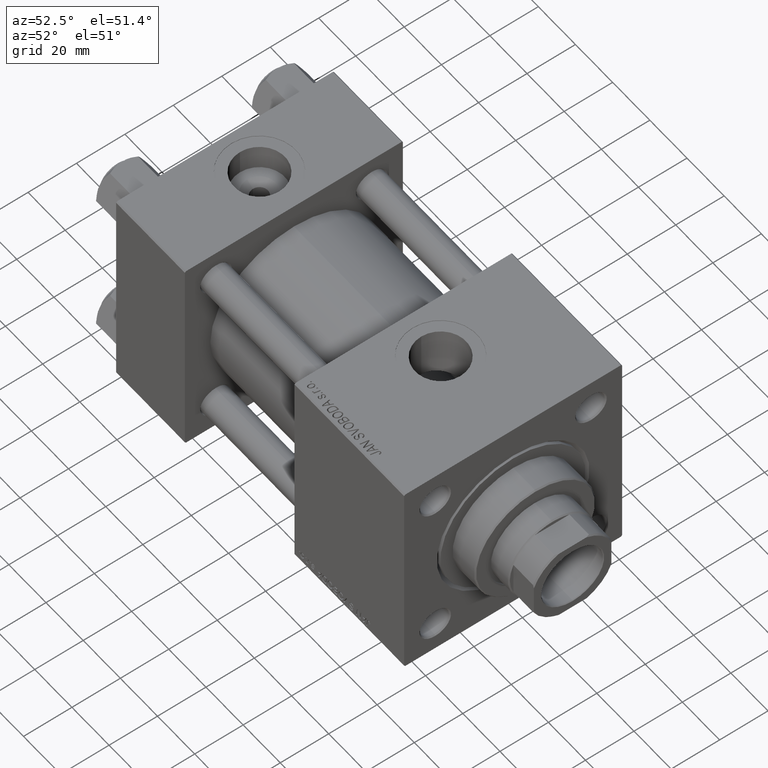
[diagram: clean part render]
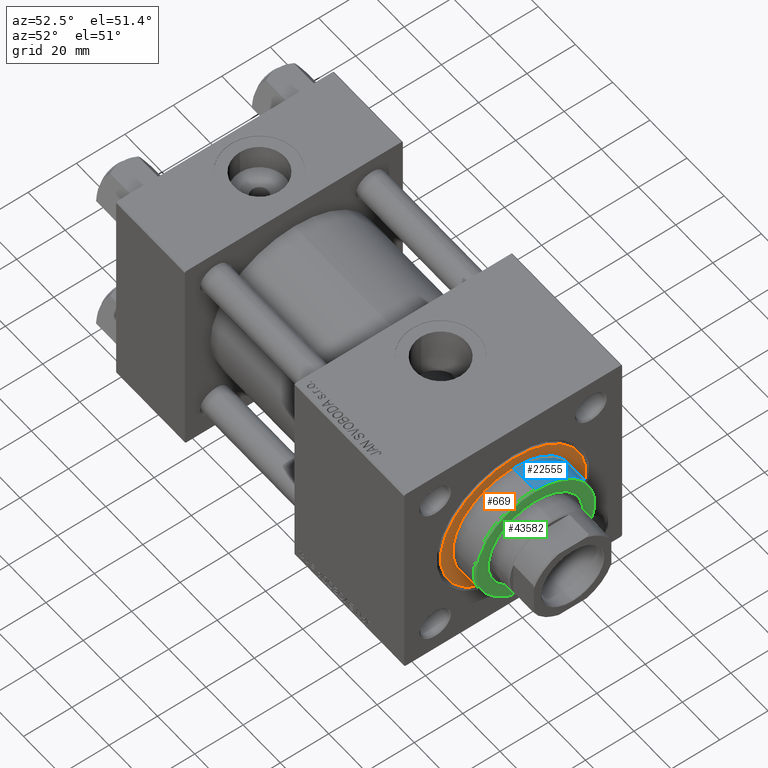
[diagram: same view with three faces highlighted in distinct colors, each labeled with its STEP entity id]
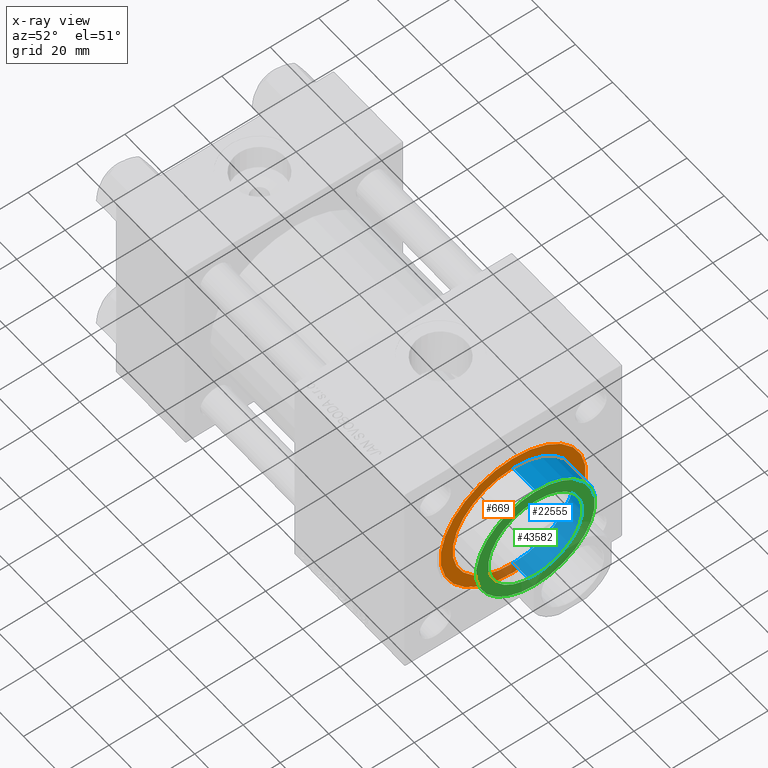
[diagram: x-ray of the same camera — body ghosted, the three highlighted faces saturated]
A machine part, auxiliary view with three faces highlighted in distinct colors.
The next image is the same camera in x-ray (body ghosted, the three faces saturated) — at least one of them is partly hidden behind the body in this view.
Their STEP definitions:

[orange] entity #669 — the highlighted planar face has unit normal (1, 0, 0).
#669 = ADVANCED_FACE ( 'NONE', ( #26575, #7536 ), #46382, .T. ) ;
#3046 = EDGE_LOOP ( 'NONE', ( #22039, #48666 ) ) ;
#3228 = DIRECTION ( 'NONE',  ( 0.000000000000000000, 0.000000000000000000, 1.000000000000000000 ) ) ;
#3312 = CIRCLE ( 'NONE', #28428, 30.00000000000000000 ) ;
#3355 = VERTEX_POINT ( 'NONE', #24071 ) ;
#4028 = AXIS2_PLACEMENT_3D ( 'NONE', #34830, #42928, #46731 ) ;
#7321 = EDGE_CURVE ( 'NONE', #3355, #35221, #20764, .T. ) ;
#7536 = FACE_OUTER_BOUND ( 'NONE', #10777, .T. ) ;
#10777 = EDGE_LOOP ( 'NONE', ( #39465, #35283 ) ) ;
#12841 = CARTESIAN_POINT ( 'NONE',  ( 0.000000000000000000, 0.000000000000000000, 28.69999999999999929 ) ) ;
#13475 = CARTESIAN_POINT ( 'NONE',  ( 30.00000000000000000, 3.673940397442059178E-15, 28.69999999999999929 ) ) ;
#14511 = CARTESIAN_POINT ( 'NONE',  ( -30.00000000000000000, 0.000000000000000000, 28.69999999999999929 ) ) ;
#15411 = DIRECTION ( 'NONE',  ( 0.000000000000000000, 0.000000000000000000, 1.000000000000000000 ) ) ;
#18715 = DIRECTION ( 'NONE',  ( 1.000000000000000000, 0.000000000000000000, -0.000000000000000000 ) ) ;
#20462 = DIRECTION ( 'NONE',  ( 0.000000000000000000, 0.000000000000000000, 1.000000000000000000 ) ) ;
#20764 = CIRCLE ( 'NONE', #34550, 25.00000000000000000 ) ;
#22039 = ORIENTED_EDGE ( 'NONE', *, *, #46918, .F. ) ;
#22428 = AXIS2_PLACEMENT_3D ( 'NONE', #23514, #3228, #18715 ) ;
#23514 = CARTESIAN_POINT ( 'NONE',  ( 0.000000000000000000, 0.000000000000000000, 28.69999999999999929 ) ) ;
#23715 = CARTESIAN_POINT ( 'NONE',  ( -25.00000000000000000, 0.000000000000000000, 28.69999999999999929 ) ) ;
#24071 = CARTESIAN_POINT ( 'NONE',  ( 25.00000000000000000, 3.061616997868383043E-15, 28.69999999999999929 ) ) ;
#24090 = VERTEX_POINT ( 'NONE', #13475 ) ;
#26575 = FACE_BOUND ( 'NONE', #3046, .T. ) ;
#26824 = DIRECTION ( 'NONE',  ( 1.000000000000000000, 0.000000000000000000, 0.000000000000000000 ) ) ;
#27920 = DIRECTION ( 'NONE',  ( 0.000000000000000000, 0.000000000000000000, 1.000000000000000000 ) ) ;
#28334 = DIRECTION ( 'NONE',  ( 1.000000000000000000, 0.000000000000000000, 0.000000000000000000 ) ) ;
#28428 = AXIS2_PLACEMENT_3D ( 'NONE', #12841, #20462, #28334 ) ;
#31498 = CIRCLE ( 'NONE', #45272, 30.00000000000000000 ) ;
#32229 = DIRECTION ( 'NONE',  ( 1.000000000000000000, 0.000000000000000000, 0.000000000000000000 ) ) ;
#34550 = AXIS2_PLACEMENT_3D ( 'NONE', #49675, #15411, #26824 ) ;
#34830 = CARTESIAN_POINT ( 'NONE',  ( 0.000000000000000000, 0.000000000000000000, 28.69999999999999929 ) ) ;
#35221 = VERTEX_POINT ( 'NONE', #23715 ) ;
#35283 = ORIENTED_EDGE ( 'NONE', *, *, #49115, .T. ) ;
#37262 = CIRCLE ( 'NONE', #4028, 25.00000000000000000 ) ;
#39465 = ORIENTED_EDGE ( 'NONE', *, *, #40213, .T. ) ;
#40213 = EDGE_CURVE ( 'NONE', #47495, #24090, #31498, .T. ) ;
#42928 = DIRECTION ( 'NONE',  ( 0.000000000000000000, 0.000000000000000000, 1.000000000000000000 ) ) ;
#43648 = CARTESIAN_POINT ( 'NONE',  ( 0.000000000000000000, 0.000000000000000000, 28.69999999999999929 ) ) ;
#45272 = AXIS2_PLACEMENT_3D ( 'NONE', #43648, #27920, #32229 ) ;
#46382 = PLANE ( 'NONE',  #22428 ) ;
#46731 = DIRECTION ( 'NONE',  ( 1.000000000000000000, 0.000000000000000000, 0.000000000000000000 ) ) ;
#46918 = EDGE_CURVE ( 'NONE', #35221, #3355, #37262, .T. ) ;
#47495 = VERTEX_POINT ( 'NONE', #14511 ) ;
#48666 = ORIENTED_EDGE ( 'NONE', *, *, #7321, .F. ) ;
#49115 = EDGE_CURVE ( 'NONE', #24090, #47495, #3312, .T. ) ;
#49675 = CARTESIAN_POINT ( 'NONE',  ( 0.000000000000000000, 0.000000000000000000, 28.69999999999999929 ) ) ;

[blue] entity #22555 — the highlighted cylindrical surface (partial cylindrical patch) has radius 25 mm, axis along (-1, -0, 0).
#1784 = CARTESIAN_POINT ( 'NONE',  ( -25.00000000000000000, 0.000000000000000000, 40.70000000000000284 ) ) ;
#3355 = VERTEX_POINT ( 'NONE', #24071 ) ;
#3542 = DIRECTION ( 'NONE',  ( -0.000000000000000000, -0.000000000000000000, -1.000000000000000000 ) ) ;
#5970 = EDGE_CURVE ( 'NONE', #8563, #3355, #39859, .T. ) ;
#7321 = EDGE_CURVE ( 'NONE', #3355, #35221, #20764, .T. ) ;
#8563 = VERTEX_POINT ( 'NONE', #45059 ) ;
#8652 = AXIS2_PLACEMENT_3D ( 'NONE', #35617, #19873, #36117 ) ;
#9193 = ORIENTED_EDGE ( 'NONE', *, *, #9838, .T. ) ;
#9838 = EDGE_CURVE ( 'NONE', #26881, #8563, #40301, .T. ) ;
#15411 = DIRECTION ( 'NONE',  ( 0.000000000000000000, 0.000000000000000000, 1.000000000000000000 ) ) ;
#15963 = FACE_OUTER_BOUND ( 'NONE', #33920, .T. ) ;
#17264 = EDGE_CURVE ( 'NONE', #26881, #35221, #36573, .T. ) ;
#17282 = DIRECTION ( 'NONE',  ( -0.000000000000000000, -0.000000000000000000, -1.000000000000000000 ) ) ;
#19873 = DIRECTION ( 'NONE',  ( 0.000000000000000000, 0.000000000000000000, -1.000000000000000000 ) ) ;
#20764 = CIRCLE ( 'NONE', #34550, 25.00000000000000000 ) ;
#21840 = ORIENTED_EDGE ( 'NONE', *, *, #17264, .F. ) ;
#22555 = ADVANCED_FACE ( 'NONE', ( #15963 ), #38320, .T. ) ;
#23715 = CARTESIAN_POINT ( 'NONE',  ( -25.00000000000000000, 0.000000000000000000, 28.69999999999999929 ) ) ;
#24071 = CARTESIAN_POINT ( 'NONE',  ( 25.00000000000000000, 3.061616997868383043E-15, 28.69999999999999929 ) ) ;
#26824 = DIRECTION ( 'NONE',  ( 1.000000000000000000, 0.000000000000000000, 0.000000000000000000 ) ) ;
#26881 = VERTEX_POINT ( 'NONE', #35497 ) ;
#33920 = EDGE_LOOP ( 'NONE', ( #9193, #49141, #38146, #21840 ) ) ;
#34550 = AXIS2_PLACEMENT_3D ( 'NONE', #49675, #15411, #26824 ) ;
#35221 = VERTEX_POINT ( 'NONE', #23715 ) ;
#35497 = CARTESIAN_POINT ( 'NONE',  ( -25.00000000000000000, 0.000000000000000000, 40.20000000000000284 ) ) ;
#35617 = CARTESIAN_POINT ( 'NONE',  ( 0.000000000000000000, 0.000000000000000000, 40.20000000000000284 ) ) ;
#36117 = DIRECTION ( 'NONE',  ( 1.000000000000000000, 0.000000000000000000, 0.000000000000000000 ) ) ;
#36573 = LINE ( 'NONE', #1784, #45262 ) ;
#38146 = ORIENTED_EDGE ( 'NONE', *, *, #7321, .T. ) ;
#38320 = CYLINDRICAL_SURFACE ( 'NONE', #44648, 25.00000000000000000 ) ;
#39103 = DIRECTION ( 'NONE',  ( -0.000000000000000000, -0.000000000000000000, -1.000000000000000000 ) ) ;
#39859 = LINE ( 'NONE', #47712, #46999 ) ;
#40301 = CIRCLE ( 'NONE', #8652, 25.00000000000000000 ) ;
#44648 = AXIS2_PLACEMENT_3D ( 'NONE', #46928, #3542, #46442 ) ;
#45059 = CARTESIAN_POINT ( 'NONE',  ( 25.00000000000000000, 3.061616997868383043E-15, 40.20000000000000284 ) ) ;
#45262 = VECTOR ( 'NONE', #17282, 1000.000000000000000 ) ;
#46442 = DIRECTION ( 'NONE',  ( -1.000000000000000000, 0.000000000000000000, 0.000000000000000000 ) ) ;
#46928 = CARTESIAN_POINT ( 'NONE',  ( 0.000000000000000000, 0.000000000000000000, 40.70000000000000284 ) ) ;
#46999 = VECTOR ( 'NONE', #39103, 1000.000000000000000 ) ;
#47712 = CARTESIAN_POINT ( 'NONE',  ( 25.00000000000000000, 3.061616997868383043E-15, 40.70000000000000284 ) ) ;
#49141 = ORIENTED_EDGE ( 'NONE', *, *, #5970, .T. ) ;
#49675 = CARTESIAN_POINT ( 'NONE',  ( 0.000000000000000000, 0.000000000000000000, 28.69999999999999929 ) ) ;

[green] entity #43582 — the highlighted planar face has unit normal (1, 0, 0).
#2253 = CARTESIAN_POINT ( 'NONE',  ( -19.50000000000000000, 2.388061258337338939E-15, 40.70000000000000284 ) ) ;
#5904 = CARTESIAN_POINT ( 'NONE',  ( 0.000000000000000000, 0.000000000000000000, 40.70000000000000284 ) ) ;
#7218 = CIRCLE ( 'NONE', #30750, 24.49999999999999645 ) ;
#10024 = EDGE_CURVE ( 'NONE', #44957, #30975, #27333, .T. ) ;
#10936 = CARTESIAN_POINT ( 'NONE',  ( 0.000000000000000000, 0.000000000000000000, 40.70000000000000284 ) ) ;
#12726 = DIRECTION ( 'NONE',  ( 1.000000000000000000, 0.000000000000000000, 0.000000000000000000 ) ) ;
#13768 = DIRECTION ( 'NONE',  ( 0.000000000000000000, 0.000000000000000000, 1.000000000000000000 ) ) ;
#14898 = VERTEX_POINT ( 'NONE', #41053 ) ;
#16255 = DIRECTION ( 'NONE',  ( 1.000000000000000000, 0.000000000000000000, -0.000000000000000000 ) ) ;
#16576 = DIRECTION ( 'NONE',  ( 1.000000000000000000, 0.000000000000000000, 0.000000000000000000 ) ) ;
#18706 = AXIS2_PLACEMENT_3D ( 'NONE', #36819, #32521, #32775 ) ;
#23135 = EDGE_CURVE ( 'NONE', #30975, #44957, #37327, .T. ) ;
#23365 = FACE_BOUND ( 'NONE', #42158, .T. ) ;
#23730 = AXIS2_PLACEMENT_3D ( 'NONE', #27471, #42953, #12726 ) ;
#26416 = DIRECTION ( 'NONE',  ( 0.000000000000000000, 0.000000000000000000, 1.000000000000000000 ) ) ;
#27333 = CIRCLE ( 'NONE', #47580, 19.50000000000000000 ) ;
#27471 = CARTESIAN_POINT ( 'NONE',  ( 0.000000000000000000, 0.000000000000000000, 40.70000000000000284 ) ) ;
#28601 = CIRCLE ( 'NONE', #23730, 24.49999999999999645 ) ;
#29302 = ORIENTED_EDGE ( 'NONE', *, *, #31616, .T. ) ;
#29513 = DIRECTION ( 'NONE',  ( 0.000000000000000000, 0.000000000000000000, 1.000000000000000000 ) ) ;
#30750 = AXIS2_PLACEMENT_3D ( 'NONE', #48288, #13768, #16576 ) ;
#30975 = VERTEX_POINT ( 'NONE', #31403 ) ;
#31403 = CARTESIAN_POINT ( 'NONE',  ( 19.50000000000000000, 0.000000000000000000, 40.70000000000000284 ) ) ;
#31616 = EDGE_CURVE ( 'NONE', #14898, #41725, #28601, .T. ) ;
#32521 = DIRECTION ( 'NONE',  ( 0.000000000000000000, 0.000000000000000000, 1.000000000000000000 ) ) ;
#32775 = DIRECTION ( 'NONE',  ( 1.000000000000000000, 0.000000000000000000, 0.000000000000000000 ) ) ;
#33214 = ORIENTED_EDGE ( 'NONE', *, *, #23135, .F. ) ;
#34307 = FACE_OUTER_BOUND ( 'NONE', #46469, .T. ) ;
#36819 = CARTESIAN_POINT ( 'NONE',  ( 0.000000000000000000, 0.000000000000000000, 40.70000000000000284 ) ) ;
#36830 = ORIENTED_EDGE ( 'NONE', *, *, #10024, .F. ) ;
#37327 = CIRCLE ( 'NONE', #18706, 19.50000000000000000 ) ;
#37622 = DIRECTION ( 'NONE',  ( 1.000000000000000000, 0.000000000000000000, 0.000000000000000000 ) ) ;
#41053 = CARTESIAN_POINT ( 'NONE',  ( 24.49999999999999645, 3.031000827889698861E-15, 40.70000000000000284 ) ) ;
#41481 = ORIENTED_EDGE ( 'NONE', *, *, #45863, .T. ) ;
#41725 = VERTEX_POINT ( 'NONE', #48515 ) ;
#42158 = EDGE_LOOP ( 'NONE', ( #33214, #36830 ) ) ;
#42953 = DIRECTION ( 'NONE',  ( 0.000000000000000000, 0.000000000000000000, 1.000000000000000000 ) ) ;
#43582 = ADVANCED_FACE ( 'NONE', ( #23365, #34307 ), #45722, .T. ) ;
#44957 = VERTEX_POINT ( 'NONE', #2253 ) ;
#45386 = AXIS2_PLACEMENT_3D ( 'NONE', #10936, #26416, #16255 ) ;
#45722 = PLANE ( 'NONE',  #45386 ) ;
#45863 = EDGE_CURVE ( 'NONE', #41725, #14898, #7218, .T. ) ;
#46469 = EDGE_LOOP ( 'NONE', ( #41481, #29302 ) ) ;
#47580 = AXIS2_PLACEMENT_3D ( 'NONE', #5904, #29513, #37622 ) ;
#48288 = CARTESIAN_POINT ( 'NONE',  ( 0.000000000000000000, 0.000000000000000000, 40.70000000000000284 ) ) ;
#48515 = CARTESIAN_POINT ( 'NONE',  ( -24.49999999999999645, 0.000000000000000000, 40.70000000000000284 ) ) ;